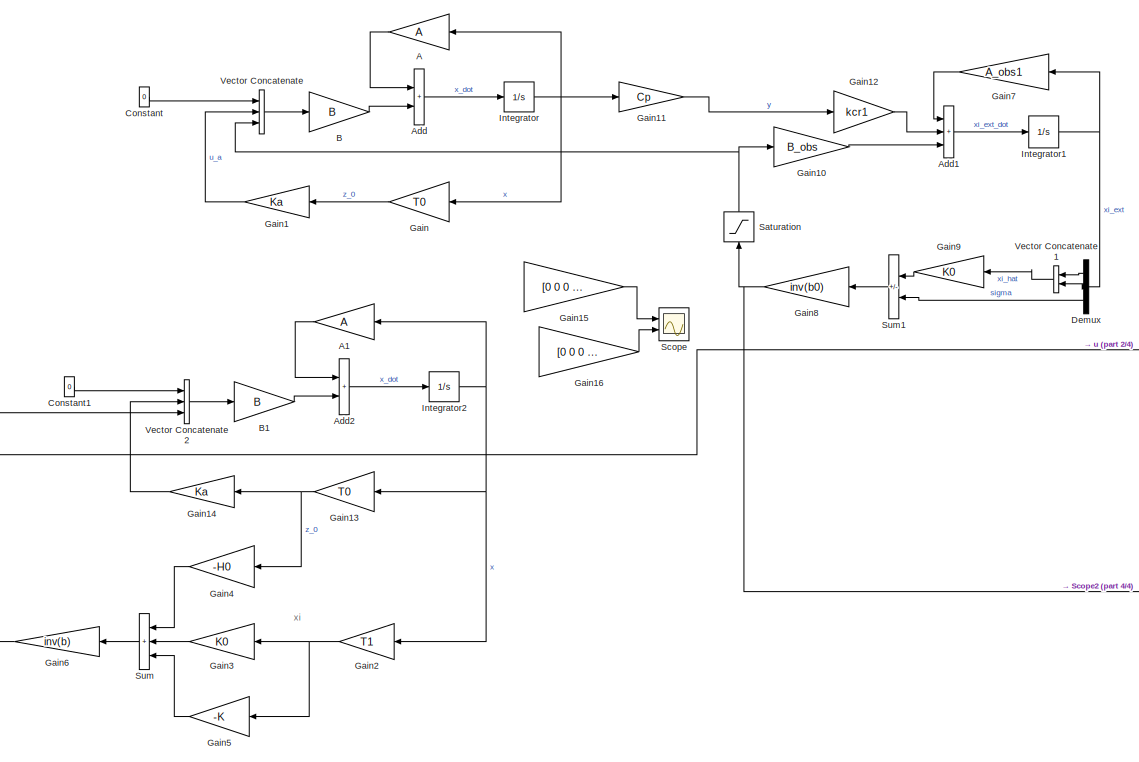
[diagram: root canvas - part 1/4, top left region]
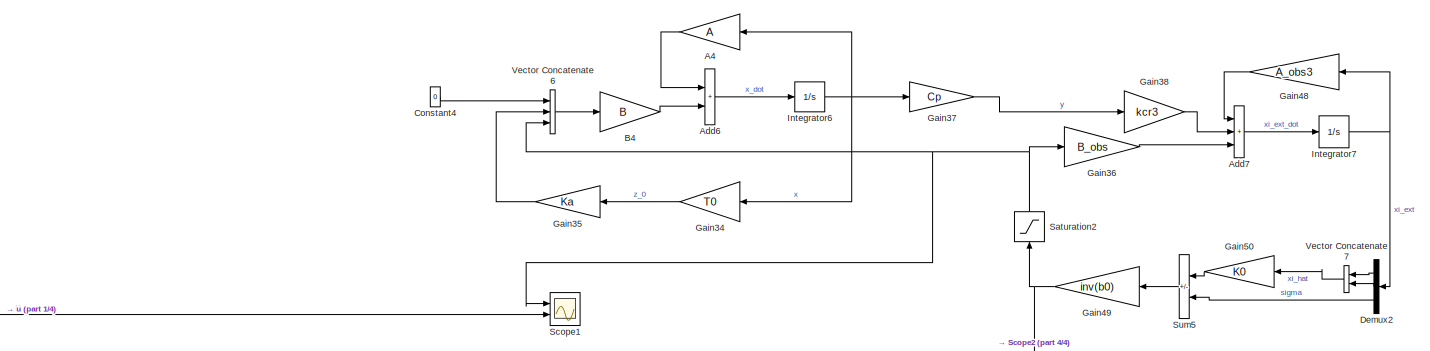
[diagram: root canvas - part 2/4, top right region]
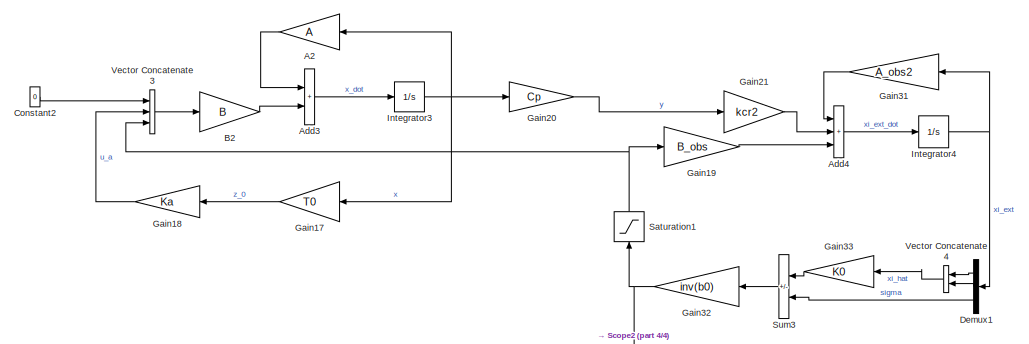
[diagram: root canvas - part 3/4, bottom left region]
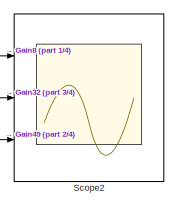
[diagram: root canvas - part 4/4, bottom center region]
MODEL slx_14248b1a4773
KIND model
CONFIG AbsTol = auto
CONFIG EnableMultiTasking = off
CONFIG FixedStep = auto
CONFIG MaxStep = auto
CONFIG MinStep = auto
CONFIG RelTol = 1e-3
CONFIG SampleTimeConstraint = Unconstrained
CONFIG SolverName = VariableStepAuto
CONFIG StartTime = 0.0
CONFIG StopTime = 6
BLOCK [Gain] A
  Gain = A
  Multiplication = Matrix(K*u) (u vector)
  NameLocation = top
BLOCK [Gain] A1
  Gain = A
  Multiplication = Matrix(K*u) (u vector)
  NameLocation = top
BLOCK [Gain] A2
  Gain = A
  Multiplication = Matrix(K*u) (u vector)
  NameLocation = top
BLOCK [Gain] A4
  Gain = A
  Multiplication = Matrix(K*u) (u vector)
  NameLocation = top
BLOCK [Sum] Add
  IconShape = rectangular
  Ports = [2, 1]
BLOCK [Sum] Add1
  IconShape = rectangular
  Inputs = +++
  Ports = [3, 1]
BLOCK [Sum] Add2
  IconShape = rectangular
  Ports = [2, 1]
BLOCK [Sum] Add3
  IconShape = rectangular
  Ports = [2, 1]
BLOCK [Sum] Add4
  IconShape = rectangular
  Inputs = +++
  Ports = [3, 1]
BLOCK [Sum] Add6
  IconShape = rectangular
  Ports = [2, 1]
BLOCK [Sum] Add7
  IconShape = rectangular
  Inputs = +++
  Ports = [3, 1]
BLOCK [Gain] B
  Gain = B
  Multiplication = Matrix(K*u) (u vector)
BLOCK [Gain] B1
  Gain = B
  Multiplication = Matrix(K*u) (u vector)
BLOCK [Gain] B2
  Gain = B
  Multiplication = Matrix(K*u) (u vector)
BLOCK [Gain] B4
  Gain = B
  Multiplication = Matrix(K*u) (u vector)
BLOCK [Constant] Constant
  Value = 0
BLOCK [Constant] Constant1
  Value = 0
BLOCK [Constant] Constant2
  Value = 0
BLOCK [Constant] Constant4
  Value = 0
BLOCK [Demux] Demux
  NameLocation = top
  Outputs = 3
  Ports = [1, 3]
BLOCK [Demux] Demux1
  NameLocation = top
  Outputs = 3
  Ports = [1, 3]
BLOCK [Demux] Demux2
  NameLocation = top
  Outputs = 3
  Ports = [1, 3]
BLOCK [Gain] Gain
  Gain = T0
  Multiplication = Matrix(K*u) (u vector)
  NameLocation = top
BLOCK [Gain] Gain1
  Gain = Ka
  Multiplication = Matrix(K*u) (u vector)
  NameLocation = top
BLOCK [Gain] Gain10
  Gain = B_obs
  Multiplication = Matrix(K*u) (u vector)
BLOCK [Gain] Gain11
  Gain = Cp
  Multiplication = Matrix(K*u) (u vector)
BLOCK [Gain] Gain12
  Gain = kcr1
  Multiplication = Matrix(K*u) (u vector)
BLOCK [Gain] Gain13
  Gain = T0
  Multiplication = Matrix(K*u) (u vector)
  NameLocation = top
BLOCK [Gain] Gain14
  Gain = Ka
  Multiplication = Matrix(K*u) (u vector)
  NameLocation = top
BLOCK [Gain] Gain15
  Commented = on
  Gain = [0 0 0 0 0 1]
  Multiplication = Matrix(K*u) (u vector)
BLOCK [Gain] Gain16
  Commented = on
  Gain = [0 0 0 0 0 1]
  Multiplication = Matrix(K*u) (u vector)
BLOCK [Gain] Gain17
  Gain = T0
  Multiplication = Matrix(K*u) (u vector)
  NameLocation = top
BLOCK [Gain] Gain18
  Gain = Ka
  Multiplication = Matrix(K*u) (u vector)
  NameLocation = top
BLOCK [Gain] Gain19
  Gain = B_obs
  Multiplication = Matrix(K*u) (u vector)
BLOCK [Gain] Gain2
  Gain = T1
  Multiplication = Matrix(K*u) (u vector)
  NameLocation = top
BLOCK [Gain] Gain20
  Gain = Cp
  Multiplication = Matrix(K*u) (u vector)
BLOCK [Gain] Gain21
  Gain = kcr2
  Multiplication = Matrix(K*u) (u vector)
BLOCK [Gain] Gain3
  Gain = K0
  Multiplication = Matrix(K*u) (u vector)
  NameLocation = top
BLOCK [Gain] Gain31
  Gain = A_obs2
  Multiplication = Matrix(K*u) (u vector)
  NameLocation = top
BLOCK [Gain] Gain32
  Gain = inv(b0)
  Multiplication = Matrix(K*u) (u vector)
  NameLocation = top
BLOCK [Gain] Gain33
  Gain = K0
  Multiplication = Matrix(K*u) (u vector)
  NameLocation = top
BLOCK [Gain] Gain34
  Gain = T0
  Multiplication = Matrix(K*u) (u vector)
  NameLocation = top
BLOCK [Gain] Gain35
  Gain = Ka
  Multiplication = Matrix(K*u) (u vector)
  NameLocation = top
BLOCK [Gain] Gain36
  Gain = B_obs
  Multiplication = Matrix(K*u) (u vector)
BLOCK [Gain] Gain37
  Gain = Cp
  Multiplication = Matrix(K*u) (u vector)
BLOCK [Gain] Gain38
  Gain = kcr3
  Multiplication = Matrix(K*u) (u vector)
BLOCK [Gain] Gain4
  Gain = -H0
  Multiplication = Matrix(K*u) (u vector)
  NameLocation = top
BLOCK [Gain] Gain48
  Gain = A_obs3
  Multiplication = Matrix(K*u) (u vector)
  NameLocation = top
BLOCK [Gain] Gain49
  Gain = inv(b0)
  Multiplication = Matrix(K*u) (u vector)
  NameLocation = top
BLOCK [Gain] Gain5
  Gain = -K
  Multiplication = Matrix(K*u) (u vector)
  NameLocation = top
BLOCK [Gain] Gain50
  Gain = K0
  Multiplication = Matrix(K*u) (u vector)
  NameLocation = top
BLOCK [Gain] Gain6
  Gain = inv(b)
  Multiplication = Matrix(K*u) (u vector)
  NameLocation = top
BLOCK [Gain] Gain7
  Gain = A_obs1
  Multiplication = Matrix(K*u) (u vector)
  NameLocation = top
BLOCK [Gain] Gain8
  Gain = inv(b0)
  Multiplication = Matrix(K*u) (u vector)
  NameLocation = top
BLOCK [Gain] Gain9
  Gain = K0
  Multiplication = Matrix(K*u) (u vector)
  NameLocation = top
BLOCK [Integrator] Integrator
  ContinuousStateAttributes = ['delta1' 'delta2' 'delta3' 'omega1' 'omega2' 'omega3']
  InitialCondition = x0
  Ports = [1, 1]
BLOCK [Integrator] Integrator1
  InitialCondition = xi_ext0
  Ports = [1, 1]
BLOCK [Integrator] Integrator2
  ContinuousStateAttributes = ['delta1' 'delta2' 'delta3' 'omega1' 'omega2' 'omega3']
  InitialCondition = x0
  Ports = [1, 1]
BLOCK [Integrator] Integrator3
  ContinuousStateAttributes = ['delta1' 'delta2' 'delta3' 'omega1' 'omega2' 'omega3']
  InitialCondition = x0
  Ports = [1, 1]
BLOCK [Integrator] Integrator4
  InitialCondition = xi_ext0
  Ports = [1, 1]
BLOCK [Integrator] Integrator6
  ContinuousStateAttributes = ['delta1' 'delta2' 'delta3' 'omega1' 'omega2' 'omega3']
  InitialCondition = x0
  Ports = [1, 1]
BLOCK [Integrator] Integrator7
  InitialCondition = xi_ext0
  Ports = [1, 1]
BLOCK [Saturate] Saturation
  LowerLimit = -L
  NameLocation = right
  UpperLimit = +L
BLOCK [Saturate] Saturation1
  LowerLimit = -L
  NameLocation = right
  UpperLimit = +L
BLOCK [Saturate] Saturation2
  LowerLimit = -L
  NameLocation = right
  UpperLimit = +L
BLOCK [Scope] Scope
  Commented = on
  Floating = off
  NumInputPorts = 2
  Ports = [2]
  ScopeSpecificationString = Simulink.scopes.TimeScopeBlockCfg('CurrentConfiguration', extmgr.ConfigurationSet(extmgr.Configuration('Core','General UI',true),extmgr.Configuration('Core','Source UI',true),extmgr.Configuration('Sources','WiredSimulink',true,'DataLoggingVariableName','ScopeData1'),extmgr.Configuration('Visuals','Time Domain',true,'SerializedDisplays',{struct('MinYLimReal','-0.02095','MaxYLimReal','0.08043','YLab...<+1460ch>
BLOCK [Scope] Scope1
  Floating = off
  NumInputPorts = 2
  Ports = [2]
  ScopeSpecificationString = Simulink.scopes.TimeScopeBlockCfg('CurrentConfiguration', extmgr.ConfigurationSet(extmgr.Configuration('Core','General UI',true),extmgr.Configuration('Core','Source UI',true),extmgr.Configuration('Sources','WiredSimulink',true,'DataLoggingVariableName','ScopeData2'),extmgr.Configuration('Visuals','Time Domain',true,'SerializedDisplays',{struct('MinYLimReal','-0.02947','MaxYLimReal','0.11439','YLab...<+1460ch>
BLOCK [Scope] Scope2
  Floating = off
  NumInputPorts = 3
  Ports = [3]
  ScopeSpecificationString = Simulink.scopes.TimeScopeBlockCfg('CurrentConfiguration', extmgr.ConfigurationSet(extmgr.Configuration('Core','General UI',true),extmgr.Configuration('Core','Source UI',true),extmgr.Configuration('Sources','WiredSimulink',true),extmgr.Configuration('Visuals','Time Domain',true,'SerializedDisplays',{struct('MinYLimReal','-0.03195','MaxYLimReal','0.13429','YLabelReal','','MinYLimMag','0.00000','MaxY...<+1521ch>
BLOCK [Sum] Sum
  IconShape = rectangular
  Inputs = +++
  NameLocation = top
  Ports = [3, 1]
BLOCK [Sum] Sum1
  IconShape = rectangular
  Inputs = +-
  NameLocation = top
  Ports = [2, 1]
BLOCK [Sum] Sum3
  IconShape = rectangular
  Inputs = +-
  NameLocation = top
  Ports = [2, 1]
BLOCK [Sum] Sum5
  IconShape = rectangular
  Inputs = +-
  NameLocation = top
  Ports = [2, 1]
BLOCK [Concatenate] Vector Concatenate
  NumInputs = 3
  Ports = [3, 1]
BLOCK [Concatenate] Vector Concatenate1
  NameLocation = top
  Ports = [2, 1]
BLOCK [Concatenate] Vector Concatenate2
  NumInputs = 3
  Ports = [3, 1]
BLOCK [Concatenate] Vector Concatenate3
  NumInputs = 3
  Ports = [3, 1]
BLOCK [Concatenate] Vector Concatenate4
  NameLocation = top
  Ports = [2, 1]
BLOCK [Concatenate] Vector Concatenate6
  NumInputs = 3
  Ports = [3, 1]
BLOCK [Concatenate] Vector Concatenate7
  NameLocation = top
  Ports = [2, 1]
ANNOTATION (root): xi
LINE A1:1 -> Add2:1
LINE A2:1 -> Add3:1
LINE A4:1 -> Add6:1
LINE A:1 -> Add:1
LINE Add1:1 -> Integrator1:1
LINE Add2:1 -> Integrator2:1
LINE Add3:1 -> Integrator3:1
LINE Add4:1 -> Integrator4:1
LINE Add6:1 -> Integrator6:1
LINE Add7:1 -> Integrator7:1
LINE Add:1 -> Integrator:1
LINE B1:1 -> Add2:2
LINE B2:1 -> Add3:2
LINE B4:1 -> Add6:2
LINE B:1 -> Add:2
LINE Constant1:1 -> Vector Concatenate2:1
LINE Constant2:1 -> Vector Concatenate3:1
LINE Constant4:1 -> Vector Concatenate6:1
LINE Constant:1 -> Vector Concatenate:1
LINE Demux1:1 -> Vector Concatenate4:1
LINE Demux1:2 -> Vector Concatenate4:2
LINE Demux1:3 -> Sum3:2
LINE Demux2:1 -> Vector Concatenate7:1
LINE Demux2:2 -> Vector Concatenate7:2
LINE Demux2:3 -> Sum5:2
LINE Demux:1 -> Vector Concatenate1:1
LINE Demux:2 -> Vector Concatenate1:2
LINE Demux:3 -> Sum1:2
LINE Gain10:1 -> Add1:3
LINE Gain11:1 -> Gain12:1
LINE Gain12:1 -> Add1:2
NET Gain13:1 -> Gain14:1, Gain4:1
LINE Gain14:1 -> Vector Concatenate2:2
LINE Gain15:1 -> Scope:1
LINE Gain16:1 -> Scope:2
LINE Gain17:1 -> Gain18:1
LINE Gain18:1 -> Vector Concatenate3:2
LINE Gain19:1 -> Add4:3
LINE Gain1:1 -> Vector Concatenate:2
LINE Gain20:1 -> Gain21:1
LINE Gain21:1 -> Add4:2
NET Gain2:1 -> Gain3:1, Gain5:1
LINE Gain31:1 -> Add4:1
NET Gain32:1 -> Saturation1:1, Scope2:2
LINE Gain33:1 -> Sum3:1
LINE Gain34:1 -> Gain35:1
LINE Gain35:1 -> Vector Concatenate6:2
LINE Gain36:1 -> Add7:3
LINE Gain37:1 -> Gain38:1
LINE Gain38:1 -> Add7:2
LINE Gain3:1 -> Sum:2
LINE Gain48:1 -> Add7:1
NET Gain49:1 -> Saturation2:1, Scope2:3
LINE Gain4:1 -> Sum:1
LINE Gain50:1 -> Sum5:1
LINE Gain5:1 -> Sum:3
NET Gain6:1 -> Scope1:2, Vector Concatenate2:3
LINE Gain7:1 -> Add1:1
NET Gain8:1 -> Saturation:1, Scope2:1
LINE Gain9:1 -> Sum1:1
LINE Gain:1 -> Gain1:1
NET Integrator1:1 -> Demux:1, Gain7:1
NET Integrator2:1 -> A1:1, Gain13:1, Gain2:1
NET Integrator3:1 -> A2:1, Gain17:1, Gain20:1
NET Integrator4:1 -> Demux1:1, Gain31:1
NET Integrator6:1 -> A4:1, Gain34:1, Gain37:1
NET Integrator7:1 -> Demux2:1, Gain48:1
NET Integrator:1 -> A:1, Gain11:1, Gain:1
NET Saturation1:1 -> Gain19:1, Vector Concatenate3:3
NET Saturation2:1 -> Gain36:1, Scope1:1, Vector Concatenate6:3
NET Saturation:1 -> Gain10:1, Vector Concatenate:3
LINE Sum1:1 -> Gain8:1
LINE Sum3:1 -> Gain32:1
LINE Sum5:1 -> Gain49:1
LINE Sum:1 -> Gain6:1
LINE Vector Concatenate1:1 -> Gain9:1
LINE Vector Concatenate2:1 -> B1:1
LINE Vector Concatenate3:1 -> B2:1
LINE Vector Concatenate4:1 -> Gain33:1
LINE Vector Concatenate6:1 -> B4:1
LINE Vector Concatenate7:1 -> Gain50:1
LINE Vector Concatenate:1 -> B:1
note: NET lines group one-source signal fan-out (src -> all destinations, sorted); 1:1 wires keep LINE
